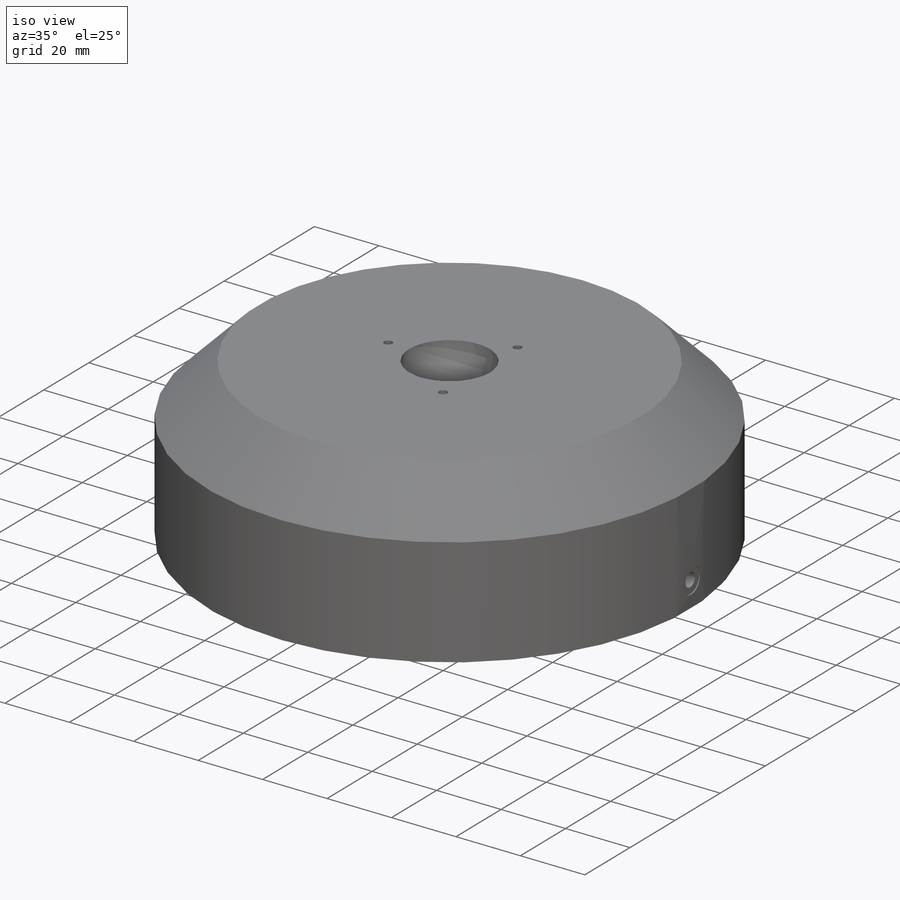
[diagram: iso view]
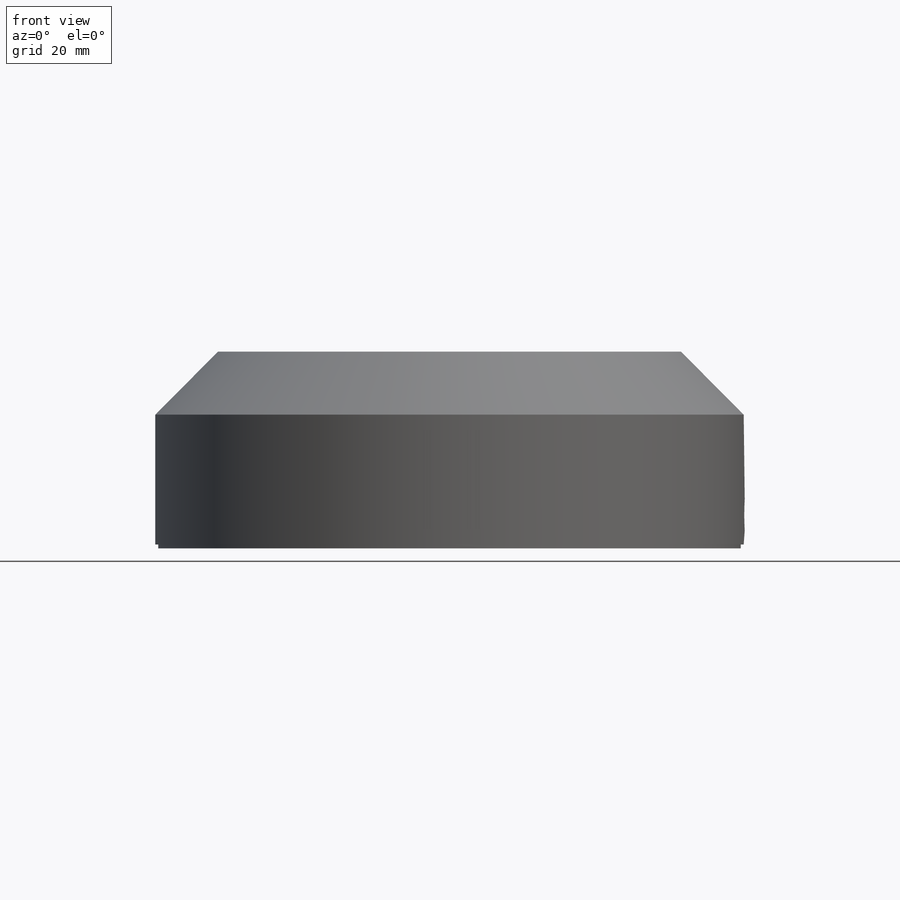
[diagram: front view]
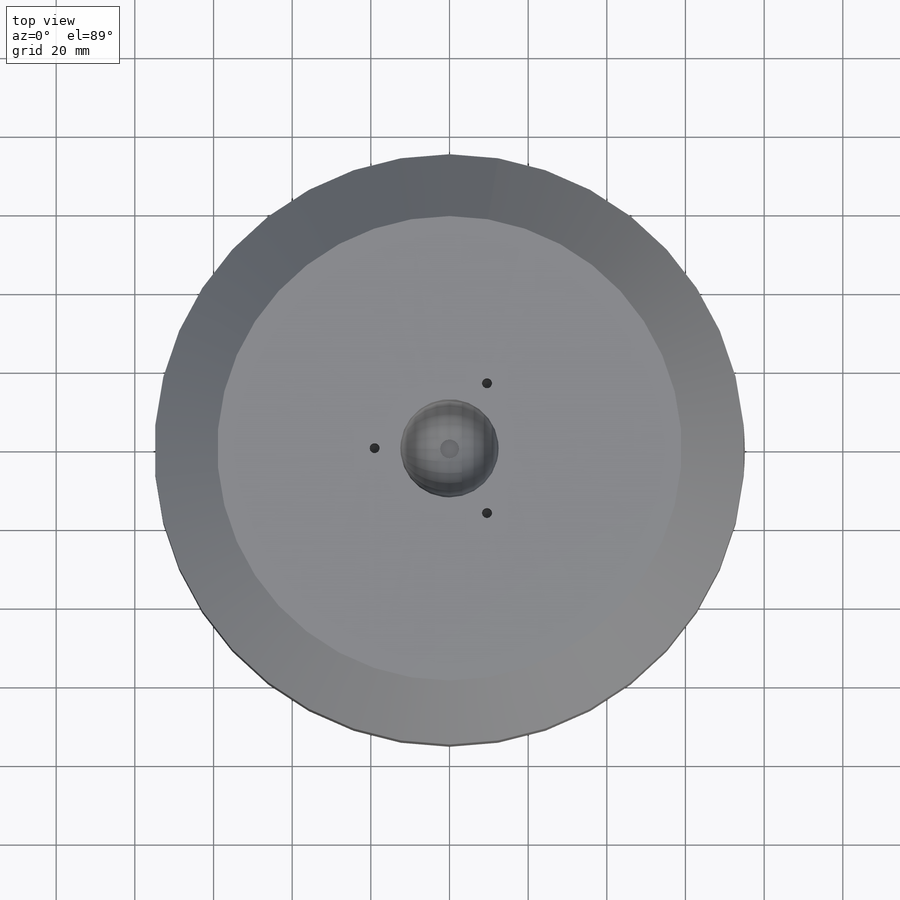
[diagram: top view]
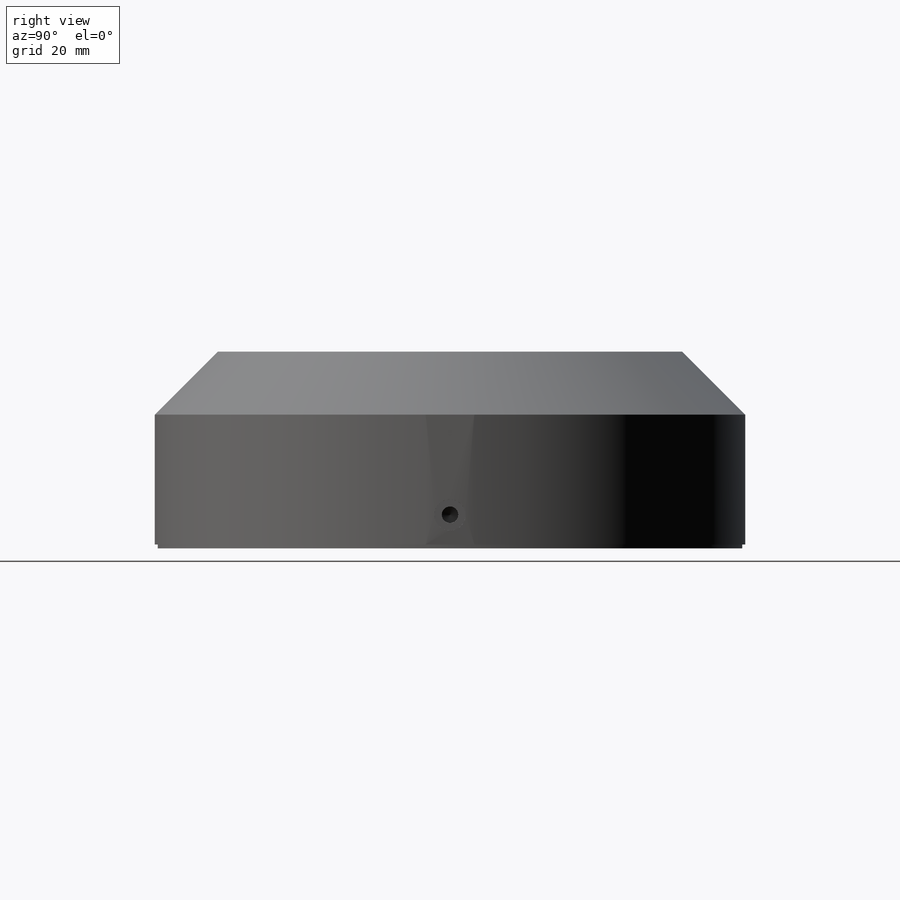
[diagram: right view]
SOLIDWORKS PART (.sldprt)
format: sldprt  version: not decoded by parser v0  size: 346,624 bytes
history: native  units: mm
features: sketch x13, extrude x5, hole x3, plane x2, pattern_circular x2, material x1, cut_extrude x1, cut_revolve x1, chamfer x1, thread x1 (+15 scaffold rows collapsed)
feature tree (45):
  scaffold x15  (default folders/planes/origin — collapsed)
  material  "6061 Alloy"
  sketch  "Sketch1"  dims[D1=152.4mm]
  extrude  "Main Extrude"  Depth=50.5582mm
  sketch  "Sketch4"  dims[c1.D1=150.114mm c2.D1=~6.511027mm]
  cut_extrude  "Turn Outside"  Depth=37.846mm
  sketch  "Sketch5"  dims[c1.D1=15.875mm c1.D2=148.59mm c1.D3=53.975mm c1.D4=73.025mm c1.D5=92.075mm c1.D6=111.125mm c2.D1=~38.755306mm c2.D2=~29.16393mm c2.D3=~19.587421mm c2.D4=~18.214322mm c2.D5=~22.379282mm c2.D6=~12.746667mm]
  extrude  "Extrude1"  Depth=0.9906mm
  sketch  "Sketch7"  dims[D1=0.0mm]
  extrude  "Face Bottom"  Depth=1.5367mm
  sketch  "Sketch8"  dims[D1=0.0mm]
  extrude  "Turn rest of outside"  [1 undecoded]
  plane  "Plane1"  Offset=0.508mm
  sketch  "Sketch3"  dims[D1=~66.654525mm]
  extrude  "Pilot hole for ball"  Depth=12.446mm
  sketch  "Sketch2"  dims[D1=~24.99995mm]
  cut_revolve  "Spherical Ball"  Angle=180deg
  chamfer  "Chamfer1"  Distance=16.002mm Angle=45deg
  plane  "Plane2"  Offset=75.184mm
  hole  "5/16 (0.3125) Diameter Hole1"  Diameter=7.9375mm Depth=0.508mm
  sketch  "Sketch18"  dims[D1=41.5036mm]
  sketch  "Sketch17"  dims[hole-wizard template sketch: 47 standard entries collapsed; hole parameters kept: c15.Hole Depth=0.508mm c15.D3=~14.816244mm c15.Drill Angle=180.0deg]
  hole  "M3x0.5 Retainer Hole"  Diameter=2.5mm Depth=7.8486mm
  sketch  "Sketch16"  dims[D1=19.05mm]
  sketch  "Sketch15"  dims[hole-wizard template sketch: 47 standard entries collapsed; hole parameters kept: c15.Tap Drill Depth=7.8486mm c15.D3=~14.816244mm c15.Drill Angle=118.0deg]
  thread  "Hole Thread1"  Diameter=6.35mm  [1 undecoded]
  pattern_circular  "Retainer hole pattern"  Count=3 Angle=360deg
  hole  "M5x0.8 Tapped Hole1"  Diameter=4.2mm Depth=66.675mm
  sketch  "Sketch20"
  sketch  "Sketch19"  dims[hole-wizard template sketch: 47 standard entries collapsed; hole parameters kept: c15.Tap Drill Depth=66.675mm c15.D3=~14.816244mm c15.Drill Angle=118.0deg]
  pattern_circular  "Hole Thread3"  [2 undecoded]
decode coverage: 24 of 27 modeling features carry decoded parameters
note: ~ marks probable driven/reference dimensions
note: 4 parameter values undecoded
note: suppression state not decoded; provenance and decode notes live in map.json
